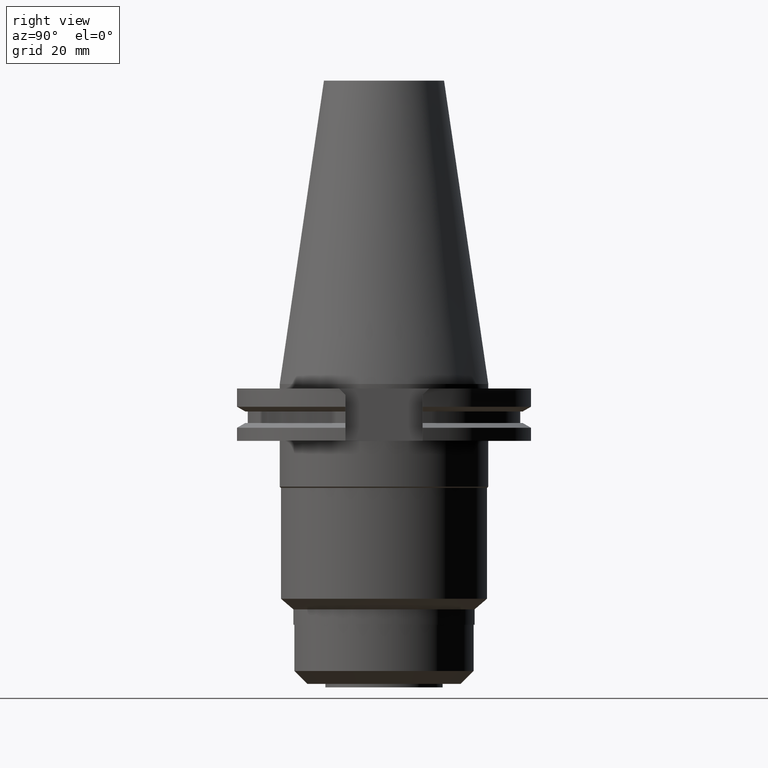
[diagram: clean part render]
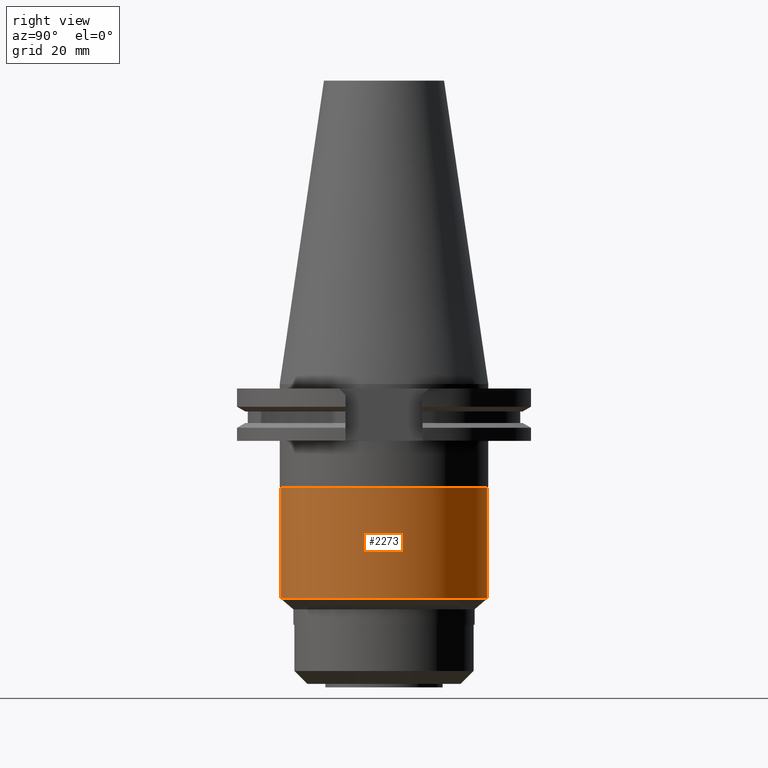
[diagram: same view with one face highlighted and labeled with its STEP entity id]
A machine part, right view. The second image highlights one B-rep face of the part: STEP entity #2273.
In plain terms, the highlighted cylindrical surface (partial cylindrical patch) has radius 34.5 mm, axis along (0, 0, -1).
Its self-contained STEP definition (entity closure, byte-faithful):
#869=CARTESIAN_POINT('',(0.E0,0.E0,-3.48E1));
#870=DIRECTION('',(0.E0,0.E0,-1.E0));
#871=DIRECTION('',(0.E0,1.E0,0.E0));
#872=AXIS2_PLACEMENT_3D('',#869,#870,#871);
#908=DIRECTION('',(0.E0,0.E0,-1.E0));
#909=VECTOR('',#908,3.71E1);
#910=CARTESIAN_POINT('',(0.E0,-3.45E1,-3.48E1));
#911=LINE('',#910,#909);
#915=DIRECTION('',(0.E0,0.E0,-1.E0));
#916=VECTOR('',#915,3.71E1);
#917=CARTESIAN_POINT('',(0.E0,3.45E1,-3.48E1));
#918=LINE('',#917,#916);
#937=CARTESIAN_POINT('',(0.E0,0.E0,-7.19E1));
#938=DIRECTION('',(0.E0,0.E0,1.E0));
#939=DIRECTION('',(0.E0,-1.E0,0.E0));
#940=AXIS2_PLACEMENT_3D('',#937,#938,#939);
#1440=CARTESIAN_POINT('',(0.E0,3.45E1,-7.19E1));
#1441=VERTEX_POINT('',#1440);
#1442=CARTESIAN_POINT('',(0.E0,-3.45E1,-7.19E1));
#1443=VERTEX_POINT('',#1442);
#1444=CARTESIAN_POINT('',(0.E0,3.45E1,-3.48E1));
#1445=VERTEX_POINT('',#1444);
#1446=CARTESIAN_POINT('',(0.E0,-3.45E1,-3.48E1));
#1447=VERTEX_POINT('',#1446);
#2261=CARTESIAN_POINT('',(0.E0,2.593312061874E-14,1.1176E2));
#2262=DIRECTION('',(0.E0,0.E0,-1.E0));
#2263=DIRECTION('',(0.E0,-1.E0,0.E0));
#2264=AXIS2_PLACEMENT_3D('',#2261,#2262,#2263);
#2265=CYLINDRICAL_SURFACE('',#2264,3.45E1);
#2266=ORIENTED_EDGE('',*,*,#2251,.T.);
#2268=ORIENTED_EDGE('',*,*,#2267,.F.);
#2269=ORIENTED_EDGE('',*,*,#2254,.F.);
#2270=ORIENTED_EDGE('',*,*,#2225,.F.);
#2271=EDGE_LOOP('',(#2266,#2268,#2269,#2270));
#2272=FACE_OUTER_BOUND('',#2271,.F.);
#873=CIRCLE('',#872,3.45E1);
#941=CIRCLE('',#940,3.45E1);
#2225=EDGE_CURVE('',#1445,#1447,#873,.T.);
#2251=EDGE_CURVE('',#1445,#1441,#918,.T.);
#2254=EDGE_CURVE('',#1447,#1443,#911,.T.);
#2267=EDGE_CURVE('',#1443,#1441,#941,.T.);
#2273=ADVANCED_FACE('',(#2272),#2265,.T.);